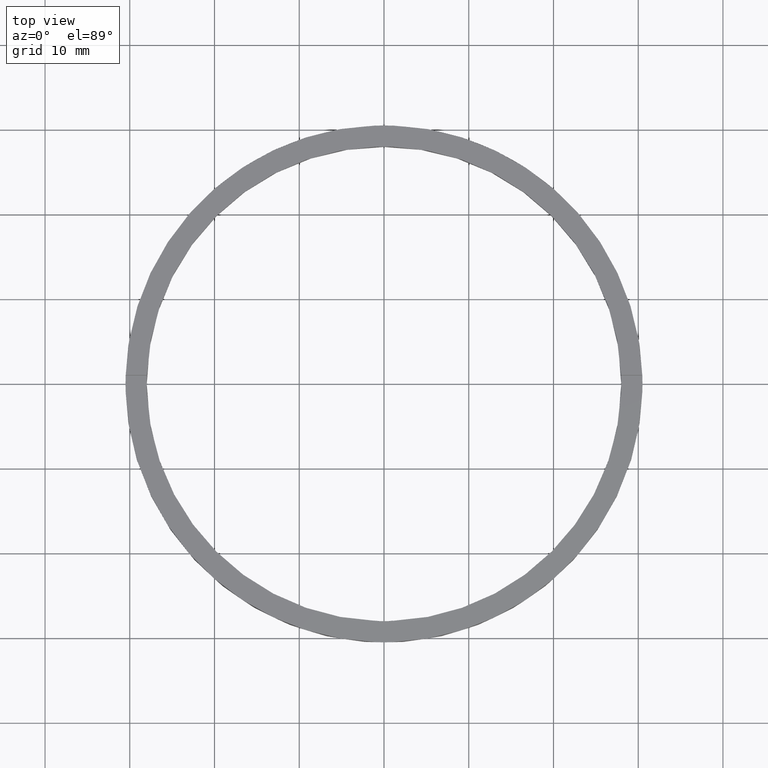
[diagram: clean part render]
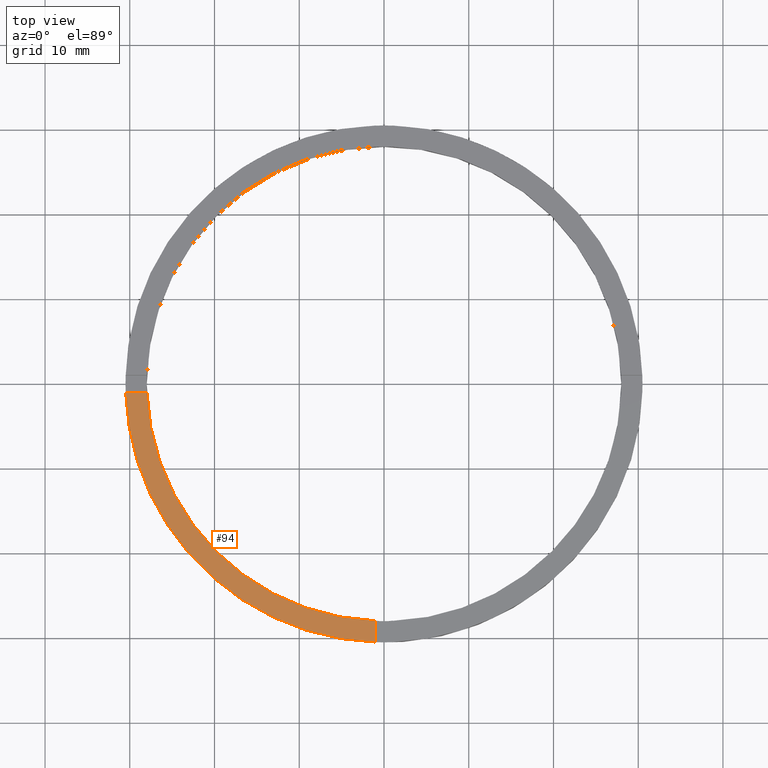
[diagram: same view with one face highlighted and labeled with its STEP entity id]
A machine part, top view. The second image highlights one B-rep face of the part: STEP entity #94.
In plain terms, the highlighted planar face has unit normal (0, 0, 1).
Its self-contained STEP definition (entity closure, byte-faithful):
#5 = EDGE_CURVE ( 'NONE', #68, #734, #459, .T. ) ;
#13 = DIRECTION ( 'NONE',  ( 0.000000000000000000, 0.000000000000000000, 1.000000000000000000 ) ) ;
#21 = CARTESIAN_POINT ( 'NONE',  ( -20.50000000000018119, -1.000000000000023537, 3.000000000000000000 ) ) ;
#63 = DIRECTION ( 'NONE',  ( 1.000000000000000000, 0.000000000000000000, 0.000000000000000000 ) ) ;
#68 = VERTEX_POINT ( 'NONE', #417 ) ;
#73 = CARTESIAN_POINT ( 'NONE',  ( 0.000000000000000000, 0.000000000000000000, 3.000000000000000000 ) ) ;
#94 = ADVANCED_FACE ( 'NONE', ( #723 ), #501, .T. ) ;
#114 = AXIS2_PLACEMENT_3D ( 'NONE', #127, #13, #63 ) ;
#127 = CARTESIAN_POINT ( 'NONE',  ( 0.000000000000000000, 0.000000000000000000, 3.000000000000000000 ) ) ;
#138 = CARTESIAN_POINT ( 'NONE',  ( -30.48360214935236101, -1.000000000000025313, 3.000000000000000000 ) ) ;
#165 = AXIS2_PLACEMENT_3D ( 'NONE', #73, #673, #491 ) ;
#170 = ORIENTED_EDGE ( 'NONE', *, *, #338, .F. ) ;
#201 = VECTOR ( 'NONE', #514, 1000.000000000000000 ) ;
#205 = ORIENTED_EDGE ( 'NONE', *, *, #476, .F. ) ;
#230 = EDGE_LOOP ( 'NONE', ( #705, #170, #205, #305 ) ) ;
#243 = VERTEX_POINT ( 'NONE', #374 ) ;
#305 = ORIENTED_EDGE ( 'NONE', *, *, #540, .T. ) ;
#338 = EDGE_CURVE ( 'NONE', #243, #68, #381, .T. ) ;
#339 = CARTESIAN_POINT ( 'NONE',  ( -1.000000000000162759, -20.50000000000017764, 3.000000000000000000 ) ) ;
#353 = CIRCLE ( 'NONE', #453, 30.50000000000000000 ) ;
#374 = CARTESIAN_POINT ( 'NONE',  ( -27.98213715926644340, -1.000000000000024869, 3.000000000000000000 ) ) ;
#381 = CIRCLE ( 'NONE', #114, 28.00000000000000000 ) ;
#410 = CARTESIAN_POINT ( 'NONE',  ( 0.000000000000000000, 0.000000000000000000, 3.000000000000000000 ) ) ;
#417 = CARTESIAN_POINT ( 'NONE',  ( -1.000000000000161871, -27.98213715926643985, 3.000000000000000000 ) ) ;
#453 = AXIS2_PLACEMENT_3D ( 'NONE', #410, #477, #589 ) ;
#454 = VERTEX_POINT ( 'NONE', #138 ) ;
#459 = LINE ( 'NONE', #339, #201 ) ;
#476 = EDGE_CURVE ( 'NONE', #454, #243, #506, .T. ) ;
#477 = DIRECTION ( 'NONE',  ( 0.000000000000000000, 0.000000000000000000, 1.000000000000000000 ) ) ;
#491 = DIRECTION ( 'NONE',  ( 1.000000000000000000, 0.000000000000000000, -0.000000000000000000 ) ) ;
#501 = PLANE ( 'NONE',  #165 ) ;
#506 = LINE ( 'NONE', #21, #774 ) ;
#514 = DIRECTION ( 'NONE',  ( 1.301042606982605074E-16, -1.000000000000000000, 0.000000000000000000 ) ) ;
#540 = EDGE_CURVE ( 'NONE', #454, #734, #353, .T. ) ;
#589 = DIRECTION ( 'NONE',  ( 1.000000000000000000, 0.000000000000000000, 0.000000000000000000 ) ) ;
#673 = DIRECTION ( 'NONE',  ( 0.000000000000000000, 0.000000000000000000, 1.000000000000000000 ) ) ;
#691 = CARTESIAN_POINT ( 'NONE',  ( -1.000000000000161648, -30.48360214935235390, 3.000000000000000000 ) ) ;
#705 = ORIENTED_EDGE ( 'NONE', *, *, #5, .F. ) ;
#723 = FACE_OUTER_BOUND ( 'NONE', #230, .T. ) ;
#734 = VERTEX_POINT ( 'NONE', #691 ) ;
#774 = VECTOR ( 'NONE', #776, 1000.000000000000000 ) ;
#776 = DIRECTION ( 'NONE',  ( 1.000000000000000000, 1.951563910473907735E-16, -0.000000000000000000 ) ) ;